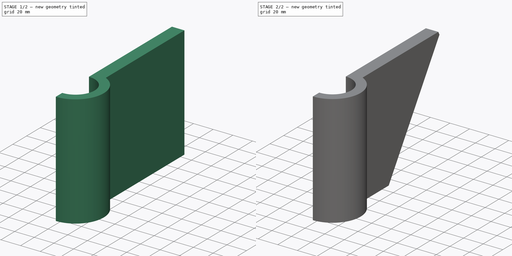
[diagram: build sequence overview — one tinted view per stage of 2, left to right]
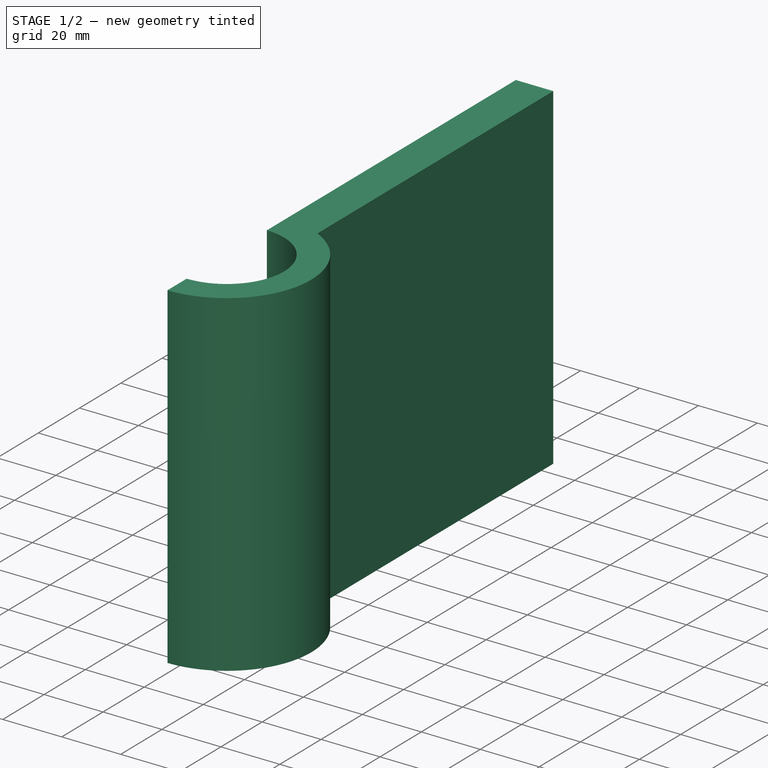
[diagram: stage 1 of 2 — iso view after this stage's code; geometry added in this stage tinted green]
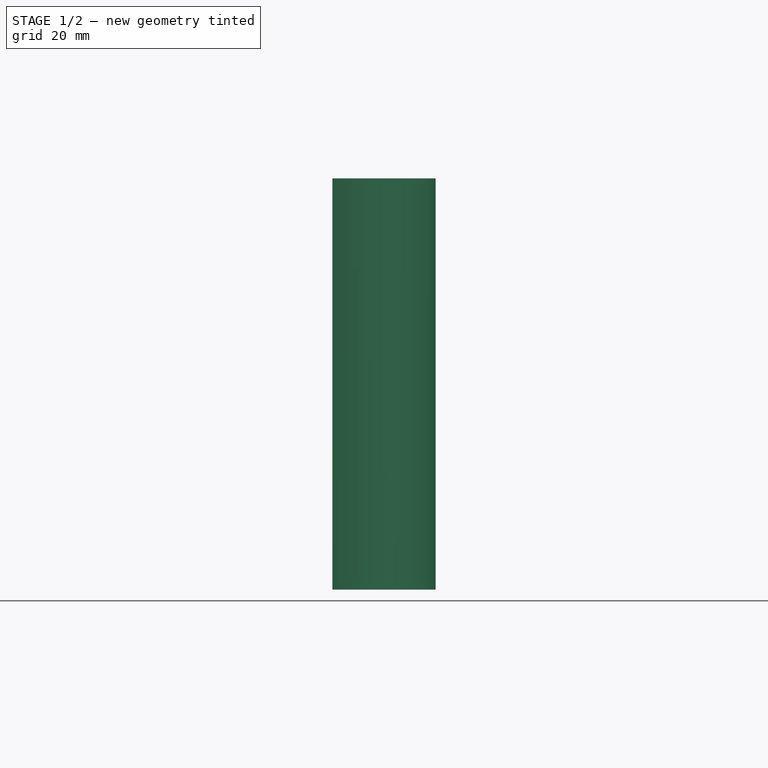
[diagram: stage 1 of 2 — front view after this stage's code; geometry added in this stage tinted green]
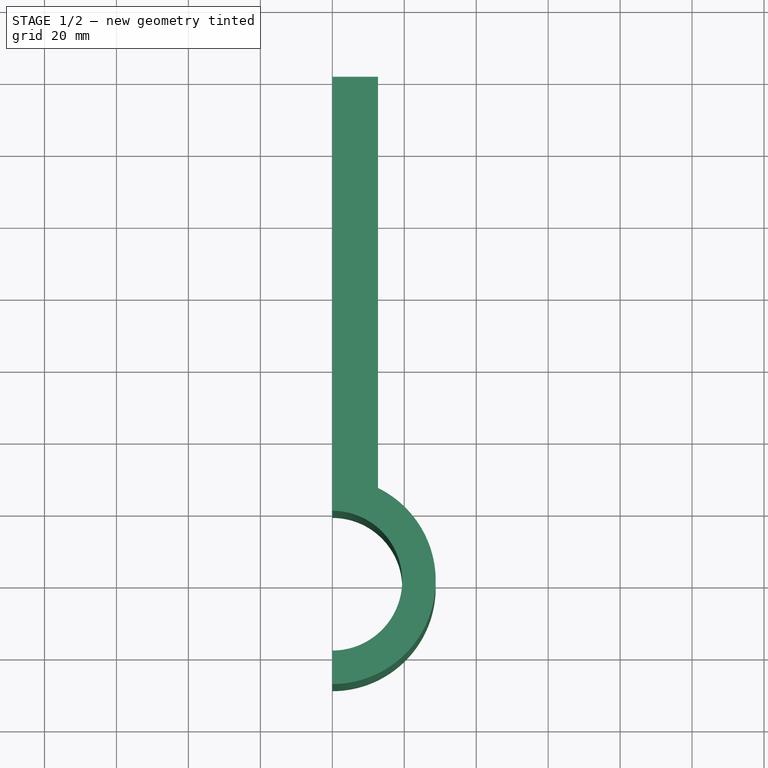
[diagram: stage 1 of 2 — top view after this stage's code; geometry added in this stage tinted green]
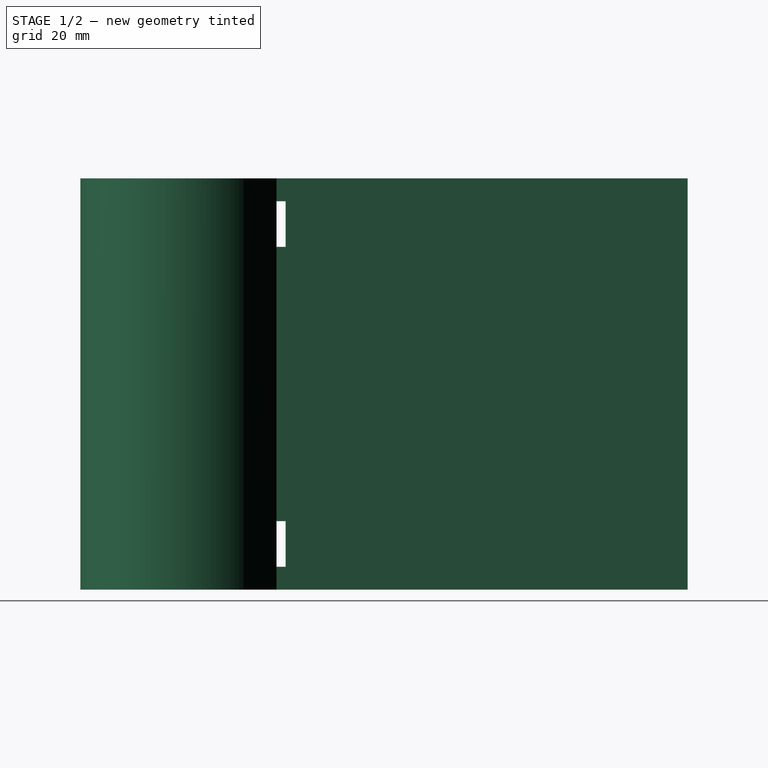
[diagram: stage 1 of 2 — right view after this stage's code; geometry added in this stage tinted green]
FCSTD DOCUMENT  (FreeCAD 0.21R31917 (Git))
Label: lilliput monitor mount
License: All rights reserved
LicenseURL: http://en.wikipedia.org/wiki/All_rights_reserved
objects: Sketcher::SketchObject×3, PartDesign::Pocket×2, PartDesign::Pad×1, PartDesign::Chamfer×1, PartDesign::CoordinateSystem×1, PartDesign::Body×1
note: 13 computed .brp shape members not serialized (recipe doc carries the construction recipe); baked Part::Feature solids carry a one-line shape summary decoded from their .brp

FEATURE [Sketcher::SketchObject] Sketch  label="CClampSketch"
  FullyConstrained = true
  MapMode = 5
  Support = -> [XY_Plane]
  sketch-geometry (6):
    g0: LineSegment StartX=0 StartY=140.081 StartZ=0 EndX=12.7 EndY=140.081 EndZ=0
    g1: LineSegment StartX=12.7 StartY=140.081 StartZ=0 EndX=12.7 EndY=25.781 EndZ=0
    g2: ArcOfCircle CenterX=0 CenterY=0 CenterZ=0 NormalX=0 NormalY=0 NormalZ=1 AngleXU=0 Radius=28.7393 StartAngle=4.71239 EndAngle=7.39626
    g3: ArcOfCircle CenterX=0 CenterY=0 CenterZ=0 NormalX=0 NormalY=0 NormalZ=1 AngleXU=0 Radius=19.431 StartAngle=4.71239 EndAngle=7.85398
    g4: LineSegment StartX=-5.3e-15 StartY=-19.431 StartZ=0 EndX=-5.3e-15 EndY=-28.7393 EndZ=0
    g5: LineSegment StartX=0 StartY=140.081 StartZ=0 EndX=5.9e-15 EndY=19.431 EndZ=0
  constraints (18):
    c: PointOnObject(g0,g-2)
    c: Horizontal(g0)
    c: PointOnObject(g2,g-2)
    c: Coincident(g1,g0)
    c: Vertical(g1)
    c: Coincident(g2,g-1)
    c: Coincident(g2,g1)
    c: Coincident(g3,g2)
    c: Coincident(g4,g3)
    c: Coincident(g4,g2)
    c: Vertical(g4)
    c: PointOnObject(g3,g-2)
    c: Coincident(g5,g0)
    c: Coincident(g5,g3)
    c: DistanceY(g3,g1) = 6.35  'RollBarOffset'
    c: DistanceX(g0,g0) = 12.7  'TableThickness'
    c: DistanceY(g1,g0) = 114.3  'ShelfLength'
    c: Diameter(g3) = 38.862  'RollBarDia'
FEATURE [PartDesign::Pad] Pad  label="CClamp"
  Direction = (0,0,1)
  Length = 114.3
  Length2 = 10
  Profile = -> Sketch
  ReferenceAxis = -> Sketch [N_Axis]
  Type = 0
FEATURE [Sketcher::SketchObject] Sketch001  label="HoseClampHolesSketch"
  FullyConstrained = false
  MapMode = 5
  Placement = pos=(12.7,0,0) rot=(0.57735,0.57735,0.57735;2.0944rad)
  Support = -> [Pad]
  expr: Constraints[13] = <<CClampSketch>>.Constraints.RollBarDia / 2 + <<CClampSketch>>.Constraints.RollBarOffset
  expr: Constraints[15] = <<CClamp>>.Length
  sketch-geometry (13):
    g0: LineSegment StartX=25.781 StartY=19.05 StartZ=0 EndX=25.781 EndY=6.35 EndZ=0
    g1: LineSegment StartX=25.781 StartY=6.35 StartZ=0 EndX=28.321 EndY=6.35 EndZ=0
    g2: LineSegment StartX=28.321 StartY=6.35 StartZ=0 EndX=28.321 EndY=19.05 EndZ=0
    g3: LineSegment StartX=28.321 StartY=19.05 StartZ=0 EndX=25.781 EndY=19.05 EndZ=0
    g4: GeomPoint X=27.051 Y=12.7 Z=0
    g5: LineSegment StartX=25.781 StartY=114.3 StartZ=0 EndX=25.781 EndY=0 EndZ=0
    g6: LineSegment StartX=28.321 StartY=6.35 StartZ=0 EndX=28.321 EndY=0 EndZ=0
    g7: LineSegment StartX=25.781 StartY=107.95 StartZ=0 EndX=28.321 EndY=107.95 EndZ=0
    g8: LineSegment StartX=28.321 StartY=107.95 StartZ=0 EndX=28.321 EndY=95.25 EndZ=0
    g9: LineSegment StartX=28.321 StartY=95.25 StartZ=0 EndX=25.781 EndY=95.25 EndZ=0
    g10: LineSegment StartX=25.781 StartY=95.25 StartZ=0 EndX=25.781 EndY=107.95 EndZ=0
    g11: LineSegment StartX=25.781 StartY=114.3 StartZ=0 EndX=40.5556 EndY=114.3 EndZ=0
    g12: LineSegment StartX=28.321 StartY=107.95 StartZ=0 EndX=28.321 EndY=114.3 EndZ=0
  constraints (37):
    c: Coincident(g0,g1)
    c: Coincident(g1,g2)
    c: Coincident(g2,g3)
    c: Coincident(g3,g0)
    c: Horizontal(g1)
    c: Horizontal(g3)
    c: Vertical(g0)
    c: Vertical(g2)
    c: Symmetric(g1,g0,g4)
    c: DistanceY(g1,g2) = 12.7
    c: DistanceX(g0,g1) = 2.54
    c: PointOnObject(g0,g5)
    c: PointOnObject(g5,g-1)
    c: DistanceX(g-1,g5) = 25.781
    c: Vertical(g5)
    c: DistanceY(g5,g5) = 114.3
    c: Coincident(g6,g1)
    c: PointOnObject(g6,g-1)
    c: Vertical(g6)
    c: DistanceY(g6,g1) = 6.35
    c: Coincident(g7,g8)
    c: Coincident(g8,g9)
    c: Coincident(g9,g10)
    c: Coincident(g10,g7)
    c: Horizontal(g7)
    c: Horizontal(g9)
    c: Vertical(g8)
    c: Vertical(g10)
    c: PointOnObject(g7,g5)
    c: Equal(g9,g3)
    c: Equal(g8,g2)
    c: Coincident(g11,g5)
    c: Horizontal(g11)
    c: Coincident(g12,g7)
    c: PointOnObject(g12,g11)
    c: Vertical(g12)
    c: Equal(g12,g6)
FEATURE [PartDesign::Pocket] Pocket  label="HoseClampHoles"
  BaseFeature = -> Pad
  Direction = (-1,0,0)
  Length = 5
  Length2 = 5
  Profile = -> Sketch001
  ReferenceAxis = -> Sketch001 [N_Axis]
  Type = 1
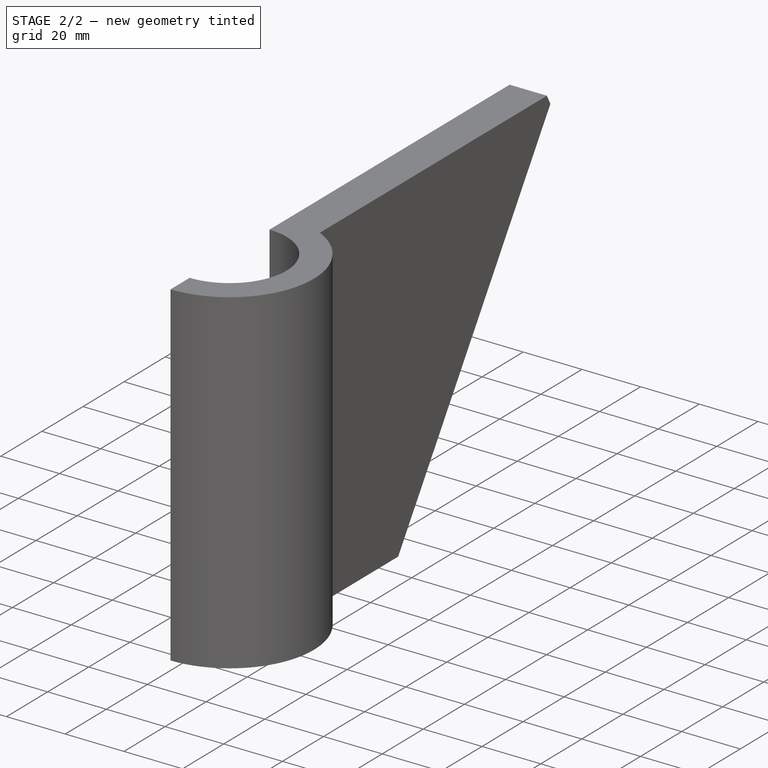
[diagram: stage 2 of 2 — iso view after this stage's code; geometry added in this stage tinted green]
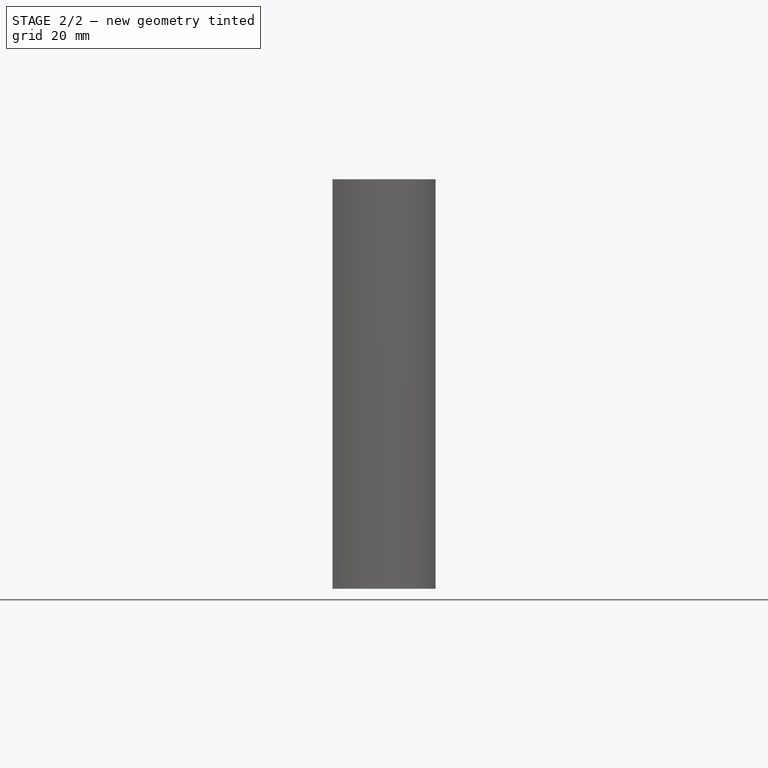
[diagram: stage 2 of 2 — front view after this stage's code; geometry added in this stage tinted green]
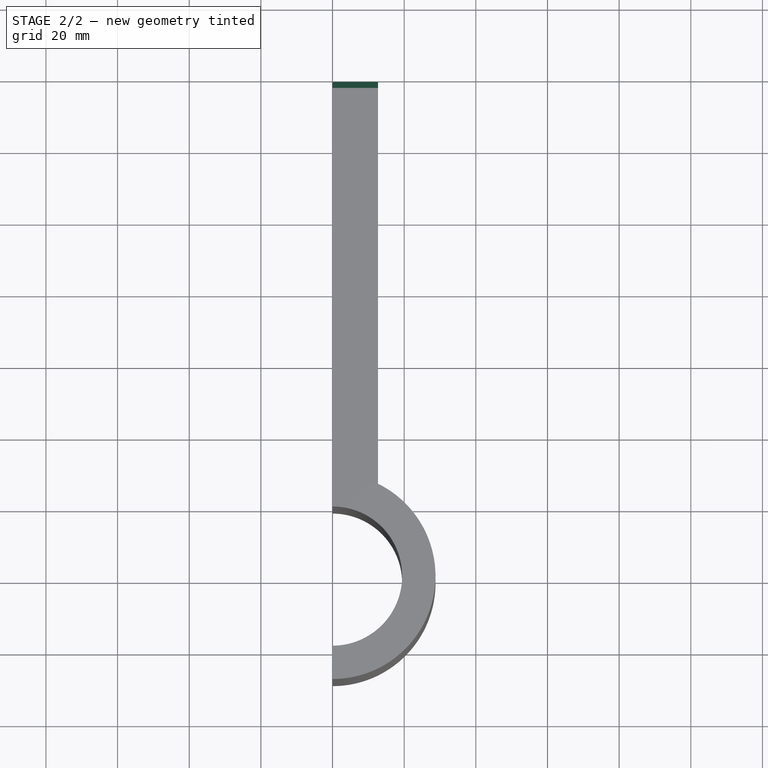
[diagram: stage 2 of 2 — top view after this stage's code; geometry added in this stage tinted green]
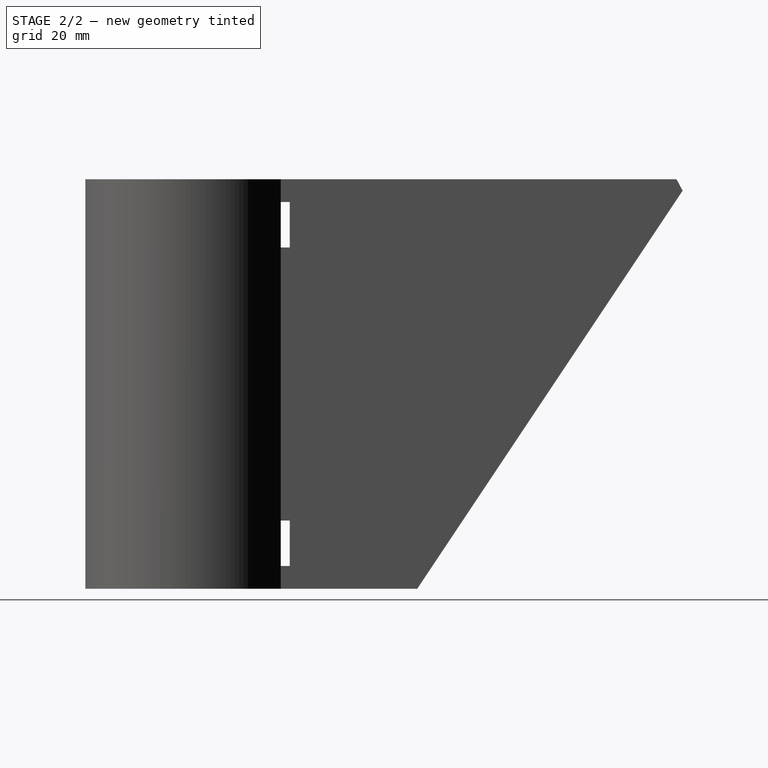
[diagram: stage 2 of 2 — right view after this stage's code; geometry added in this stage tinted green]
FEATURE [Sketcher::SketchObject] Sketch002  label="ShelfAngle"
  AttachmentOffset = pos=(0,0,12.7) rot=(0,0,1;0rad)
  FullyConstrained = false
  MapMode = 5
  Placement = pos=(12.7,-2.8e-15,2.8e-15) rot=(0.57735,0.57735,0.57735;2.0944rad)
  Support = -> [YZ_Plane]
  expr: .AttachmentOffset.Base.z = <<CClampSketch>>.Constraints.TableThickness
  expr: Constraints[8] = <<CClampSketch>>.Constraints.RollBarDia / 2 + <<CClampSketch>>.Constraints.RollBarOffset
  expr: Constraints[9] = <<CClamp>>.Length
  sketch-geometry (7):
    g0: LineSegment StartX=63.881 StartY=0 StartZ=0 EndX=140.081 EndY=114.3 EndZ=0
    g1: LineSegment StartX=140.081 StartY=114.3 StartZ=0 EndX=25.781 EndY=114.3 EndZ=0
    g2: LineSegment StartX=25.781 StartY=114.3 StartZ=0 EndX=25.781 EndY=0 EndZ=0
    g3: LineSegment StartX=25.781 StartY=0 StartZ=0 EndX=63.881 EndY=0 EndZ=0
    g4: LineSegment StartX=140.081 StartY=114.3 StartZ=0 EndX=140.081 EndY=0 EndZ=0
    g5: LineSegment StartX=63.881 StartY=0 StartZ=0 EndX=140.081 EndY=0 EndZ=0
    g6: GeomPoint X=105.561 Y=62.5207 Z=0
  constraints (21):
    c: PointOnObject(g0,g-1)
    c: Coincident(g0,g1)
    c: Horizontal(g1)
    c: Coincident(g1,g2)
    c: PointOnObject(g2,g-1)
    c: Vertical(g2)
    c: Coincident(g2,g3)
    c: Coincident(g3,g0)
    c: DistanceX(g-1,g2) = 25.781
    c: DistanceY(g2,g1) = 114.3
    c: DistanceX(g2,g0) = 38.1
    c: DistanceX(g1,g0) = 114.3
    c: Coincident(g4,g0)
    c: PointOnObject(g4,g-1)
    c: Vertical(g4)
    c: Coincident(g5,g0)
    c: Coincident(g5,g4)
    c: Angle(g0,g3) = 2.1588
    c: PointOnObject(g6,g0)
    c: Angle(g1,g0) = 0.982794
    c: Distance(g0,g0) = 137.372
FEATURE [PartDesign::Pocket] Pocket001
  BaseFeature = -> Pocket
  Direction = (-1,2e-16,-3e-16)
  Length = 5
  Length2 = 5
  Profile = -> Sketch002
  ReferenceAxis = -> Sketch002 [N_Axis]
  Type = 1
FEATURE [PartDesign::Chamfer] Chamfer
  Angle = 45
  Base = -> Pocket001 [Edge1]
  BaseFeature = -> Pocket001
  ChamferType = 0
  FlipDirection = false
  Size = 3.81
  Size2 = 1
  SupportTransform = false
  UseAllEdges = false
FEATURE [PartDesign::CoordinateSystem] Local_CS  label="LCS_FrontOfShelf"
  AttacherType = Attacher::AttachEngine3D
  MapMode = 45
  Placement = pos=(6.35,100.924,55.5649) rot=(1,0,0;4.12439rad)
  Support = -> [Chamfer]
FEATURE [PartDesign::Body] Body
  Group = -> [Sketch,Pad,Sketch001,Pocket,Sketch002,Pocket001,Chamfer,Local_CS]
  Origin = -> Origin
  Tip = -> Chamfer
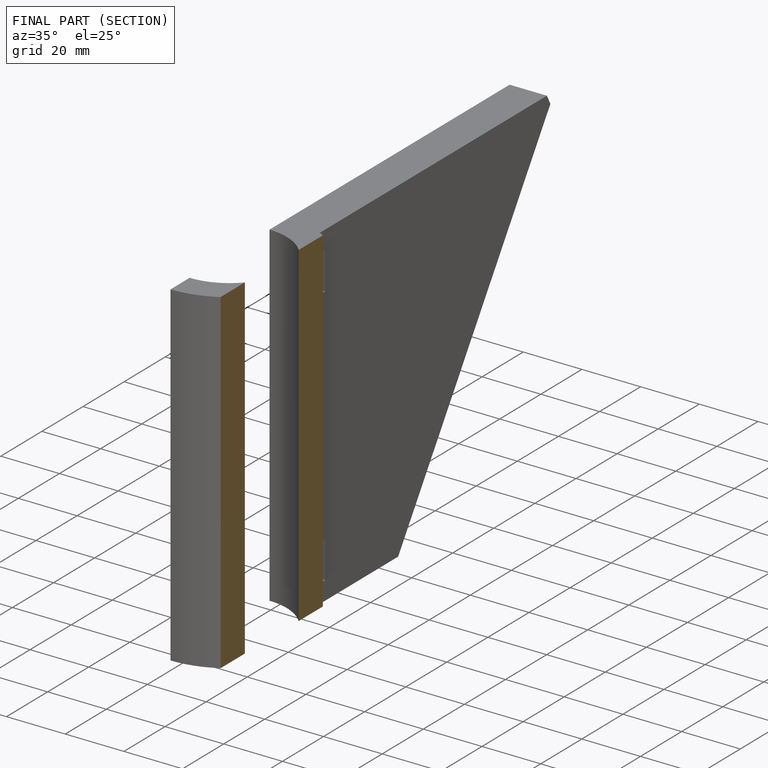
[diagram: finished part — half-section view (interior)]
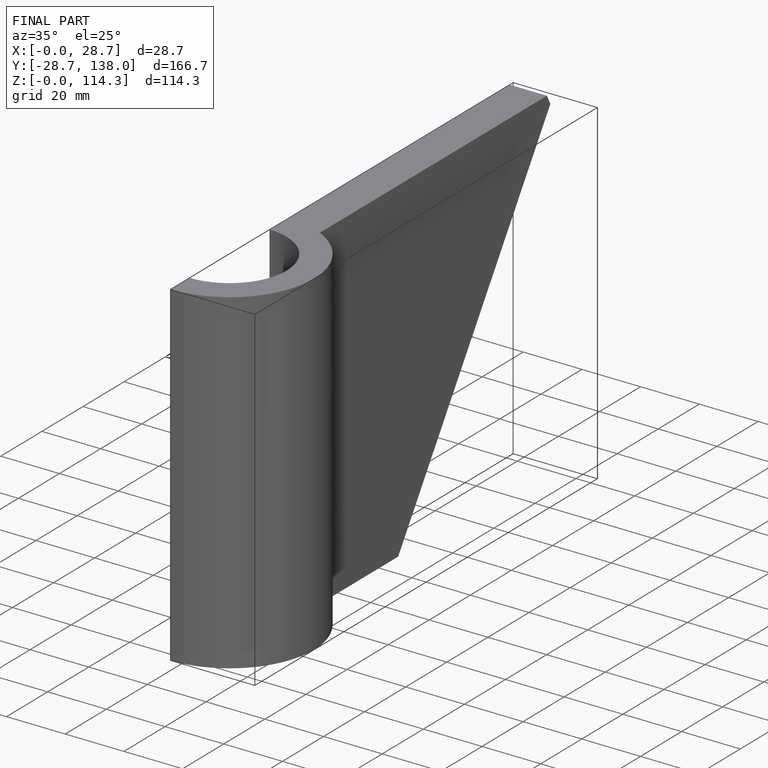
[diagram: finished part — iso view with bounding-box wireframe]
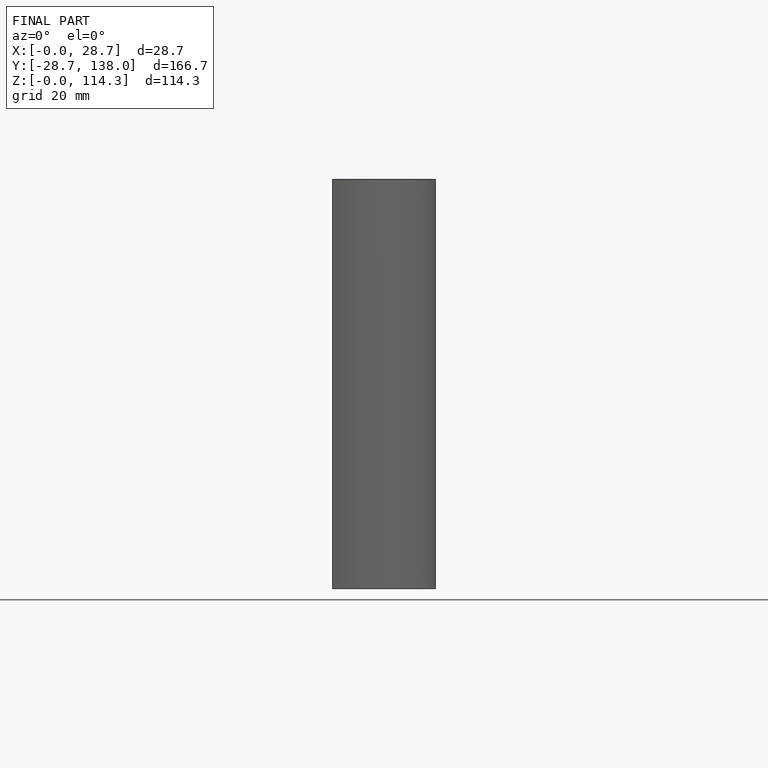
[diagram: finished part — front view with bounding-box wireframe]
